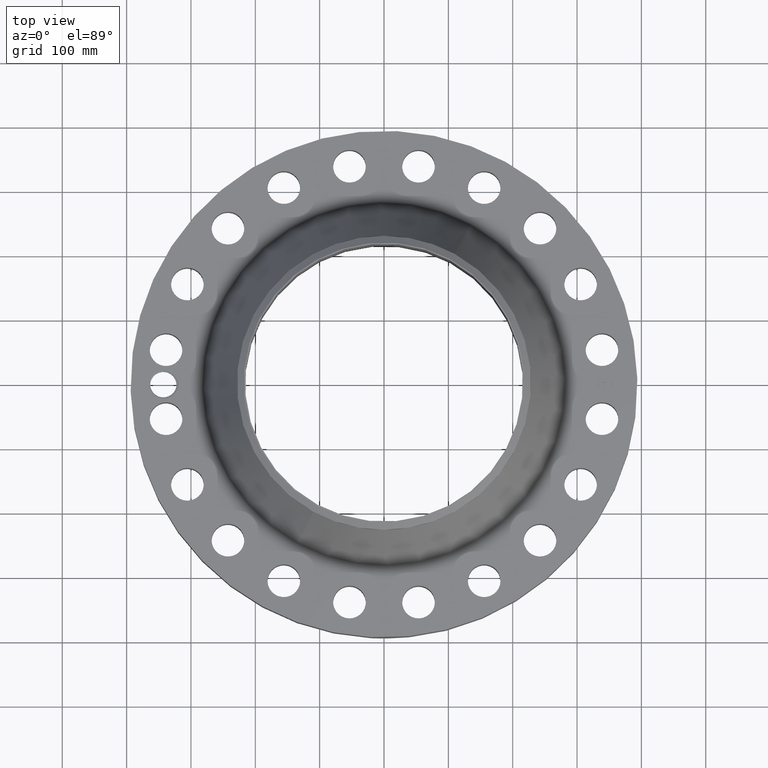
[diagram: clean part render]
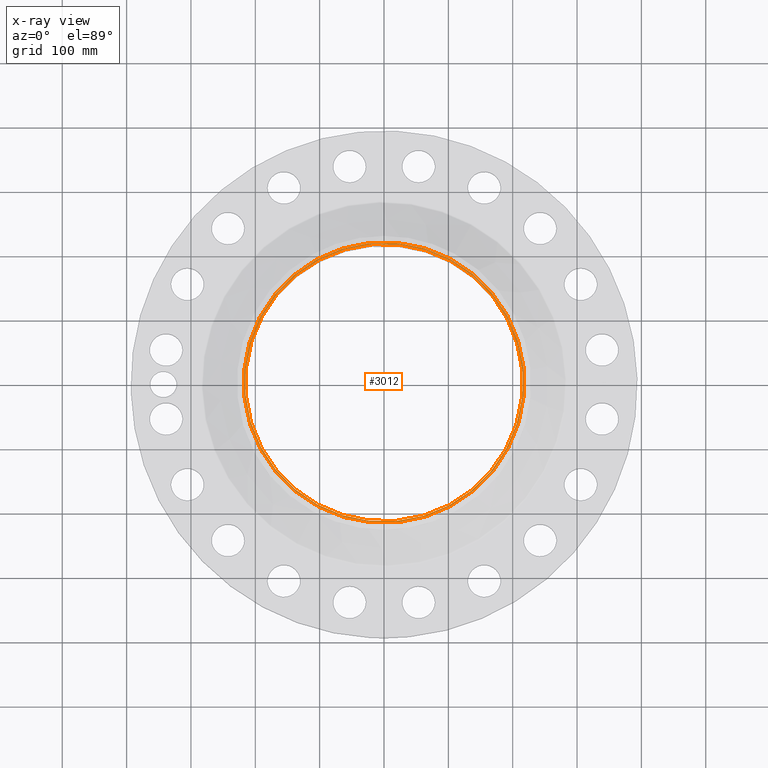
[diagram: x-ray — body ghosted, one internal face saturated and labeled with its STEP entity id]
A machine part, top view, then the same camera in x-ray: the body is ghosted and one INTERNAL B-rep face — a face not visible from any outside direction — is saturated and labeled: STEP entity #3012.
In plain terms, the highlighted planar face has unit normal (0, 0, -1).
Its self-contained STEP definition (entity closure, byte-faithful):
#1592=AXIS2_PLACEMENT_3D('Circle Axis2P3D',#1590,#1591,$) ;
#1660=AXIS2_PLACEMENT_3D('Circle Axis2P3D',#1658,#1659,$) ;
#2988=AXIS2_PLACEMENT_3D('Plane Axis2P3D',#2985,#2986,#2987) ;
#2992=AXIS2_PLACEMENT_3D('Circle Axis2P3D',#2990,#2991,$) ;
#3001=AXIS2_PLACEMENT_3D('Circle Axis2P3D',#2999,#3000,$) ;
#1590=CARTESIAN_POINT('Axis2P3D Location',(0.,0.,9.25000000004)) ;
#1594=CARTESIAN_POINT('Vertex',(4.07511707815,7.4594517761,9.25000000004)) ;
#1596=CARTESIAN_POINT('Vertex',(-4.07511707815,-7.4594517761,9.25000000004)) ;
#1658=CARTESIAN_POINT('Axis2P3D Location',(0.,0.,9.25000000004)) ;
#2985=CARTESIAN_POINT('Axis2P3D Location',(0.,9.00000000004,9.25000000004)) ;
#2990=CARTESIAN_POINT('Axis2P3D Location',(0.,0.,9.25000000004)) ;
#2994=CARTESIAN_POINT('Vertex',(4.11286712056,-7.52855276522,9.25000000004)) ;
#2996=CARTESIAN_POINT('Vertex',(-4.11286712056,7.52855276522,9.25000000004)) ;
#2999=CARTESIAN_POINT('Axis2P3D Location',(0.,0.,9.25000000004)) ;
#1591=DIRECTION('Axis2P3D Direction',(0.,0.,-0.0393700787402)) ;
#1659=DIRECTION('Axis2P3D Direction',(0.,0.,-0.0393700787402)) ;
#2986=DIRECTION('Axis2P3D Direction',(0.,0.,-0.0393700787402)) ;
#2987=DIRECTION('Axis2P3D XDirection',(0.0393700787402,0.,0.)) ;
#2991=DIRECTION('Axis2P3D Direction',(0.,0.,-0.0393700787402)) ;
#3000=DIRECTION('Axis2P3D Direction',(0.,0.,-0.0393700787402)) ;
#3005=ORIENTED_EDGE('',*,*,#2998,.T.) ;
#3006=ORIENTED_EDGE('',*,*,#3003,.T.) ;
#3009=ORIENTED_EDGE('',*,*,#1662,.T.) ;
#3010=ORIENTED_EDGE('',*,*,#1598,.T.) ;
#3011=FACE_BOUND('',#3008,.T.) ;
#3012=ADVANCED_FACE('PartBody',(#3007,#3011),#2989,.F.) ;
#1593=CIRCLE('generated circle',#1592,8.50000000003) ;
#1661=CIRCLE('generated circle',#1660,8.50000000003) ;
#2993=CIRCLE('generated circle',#2992,8.57874015751) ;
#3002=CIRCLE('generated circle',#3001,8.57874015751) ;
#1598=EDGE_CURVE('',#1595,#1597,#1593,.T.) ;
#1662=EDGE_CURVE('',#1597,#1595,#1661,.T.) ;
#2998=EDGE_CURVE('',#2995,#2997,#2993,.F.) ;
#3003=EDGE_CURVE('',#2997,#2995,#3002,.F.) ;
#3004=EDGE_LOOP('',(#3005,#3006)) ;
#3008=EDGE_LOOP('',(#3009,#3010)) ;
#3007=FACE_OUTER_BOUND('',#3004,.T.) ;
#2989=PLANE('',#2988) ;
#1595=VERTEX_POINT('',#1594) ;
#1597=VERTEX_POINT('',#1596) ;
#2995=VERTEX_POINT('',#2994) ;
#2997=VERTEX_POINT('',#2996) ;